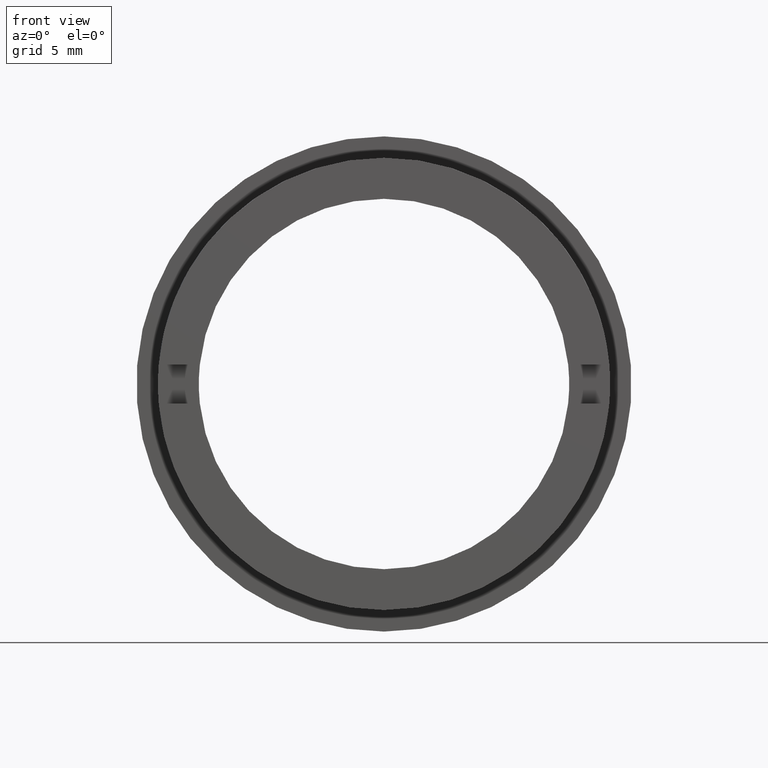
[diagram: clean part render]
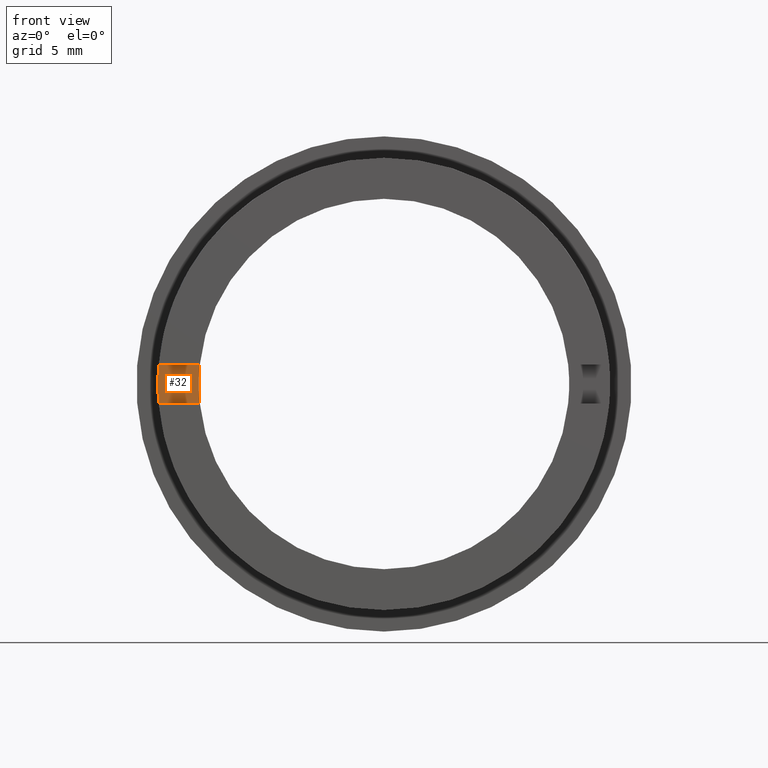
[diagram: same view with one face highlighted and labeled with its STEP entity id]
A machine part, front view. The second image highlights one B-rep face of the part: STEP entity #32.
In plain terms, the highlighted planar face has unit normal (0, 1, 0).
Its self-contained STEP definition (entity closure, byte-faithful):
#2 = VECTOR ( 'NONE', #398, 1000.000000000000000 ) ;
#32 = ADVANCED_FACE ( 'NONE', ( #838 ), #698, .F. ) ;
#51 = CARTESIAN_POINT ( 'NONE',  ( -39.50000000000002100, 2.000000000000000000, 1.000000000000000200 ) ) ;
#76 = DIRECTION ( 'NONE',  ( 0.0000000000000000000, 1.000000000000000000, 0.0000000000000000000 ) ) ;
#96 = EDGE_LOOP ( 'NONE', ( #421, #140, #102, #597 ) ) ;
#102 = ORIENTED_EDGE ( 'NONE', *, *, #635, .T. ) ;
#131 = CARTESIAN_POINT ( 'NONE',  ( -11.55681617055493000, 1.999999999999998200, 1.000000000000000200 ) ) ;
#140 = ORIENTED_EDGE ( 'NONE', *, *, #812, .F. ) ;
#141 = DIRECTION ( 'NONE',  ( 1.000000000000000000, -0.0000000000000000000, -0.0000000000000000000 ) ) ;
#158 = AXIS2_PLACEMENT_3D ( 'NONE', #433, #961, #343 ) ;
#193 = CIRCLE ( 'NONE', #158, 11.59999999999999800 ) ;
#228 = CARTESIAN_POINT ( 'NONE',  ( -11.55681617055492800, 2.000000000000000000, -0.9999999999999995600 ) ) ;
#240 = LINE ( 'NONE', #51, #2 ) ;
#253 = CARTESIAN_POINT ( 'NONE',  ( -39.50000000000002100, 2.000000000000000000, 1.000000000000000200 ) ) ;
#270 = VERTEX_POINT ( 'NONE', #228 ) ;
#287 = VERTEX_POINT ( 'NONE', #767 ) ;
#312 = VERTEX_POINT ( 'NONE', #131 ) ;
#343 = DIRECTION ( 'NONE',  ( 0.0000000000000000000, 0.0000000000000000000, 1.000000000000000000 ) ) ;
#398 = DIRECTION ( 'NONE',  ( 1.000000000000000000, -0.0000000000000000000, -0.0000000000000000000 ) ) ;
#421 = ORIENTED_EDGE ( 'NONE', *, *, #884, .T. ) ;
#433 = CARTESIAN_POINT ( 'NONE',  ( 0.0000000000000000000, 1.999999999999998200, 0.0000000000000000000 ) ) ;
#461 = VERTEX_POINT ( 'NONE', #822 ) ;
#519 = DIRECTION ( 'NONE',  ( 0.0000000000000000000, 0.0000000000000000000, 1.000000000000000000 ) ) ;
#565 = VECTOR ( 'NONE', #141, 1000.000000000000000 ) ;
#597 = ORIENTED_EDGE ( 'NONE', *, *, #773, .T. ) ;
#610 = CARTESIAN_POINT ( 'NONE',  ( 0.0000000000000000000, 1.999999999999998200, 0.0000000000000000000 ) ) ;
#613 = DIRECTION ( 'NONE',  ( 0.0000000000000000000, -0.0000000000000000000, 1.000000000000000000 ) ) ;
#635 = EDGE_CURVE ( 'NONE', #312, #270, #193, .T. ) ;
#679 = CARTESIAN_POINT ( 'NONE',  ( -39.50000000000002100, 2.000000000000000000, -0.9999999999999995600 ) ) ;
#698 = PLANE ( 'NONE',  #1087 ) ;
#741 = LINE ( 'NONE', #679, #565 ) ;
#767 = CARTESIAN_POINT ( 'NONE',  ( -9.447221813845587200, 2.000000000000000000, -0.9999999999999995600 ) ) ;
#773 = EDGE_CURVE ( 'NONE', #270, #287, #741, .T. ) ;
#800 = AXIS2_PLACEMENT_3D ( 'NONE', #610, #950, #519 ) ;
#812 = EDGE_CURVE ( 'NONE', #312, #461, #240, .T. ) ;
#822 = CARTESIAN_POINT ( 'NONE',  ( -9.447221813845589000, 1.999999999999998200, 1.000000000000000200 ) ) ;
#838 = FACE_OUTER_BOUND ( 'NONE', #96, .T. ) ;
#884 = EDGE_CURVE ( 'NONE', #287, #461, #1020, .T. ) ;
#950 = DIRECTION ( 'NONE',  ( 0.0000000000000000000, 1.000000000000000000, 0.0000000000000000000 ) ) ;
#961 = DIRECTION ( 'NONE',  ( -0.0000000000000000000, -1.000000000000000000, -0.0000000000000000000 ) ) ;
#1020 = CIRCLE ( 'NONE', #800, 9.499999999999996400 ) ;
#1087 = AXIS2_PLACEMENT_3D ( 'NONE', #253, #76, #613 ) ;